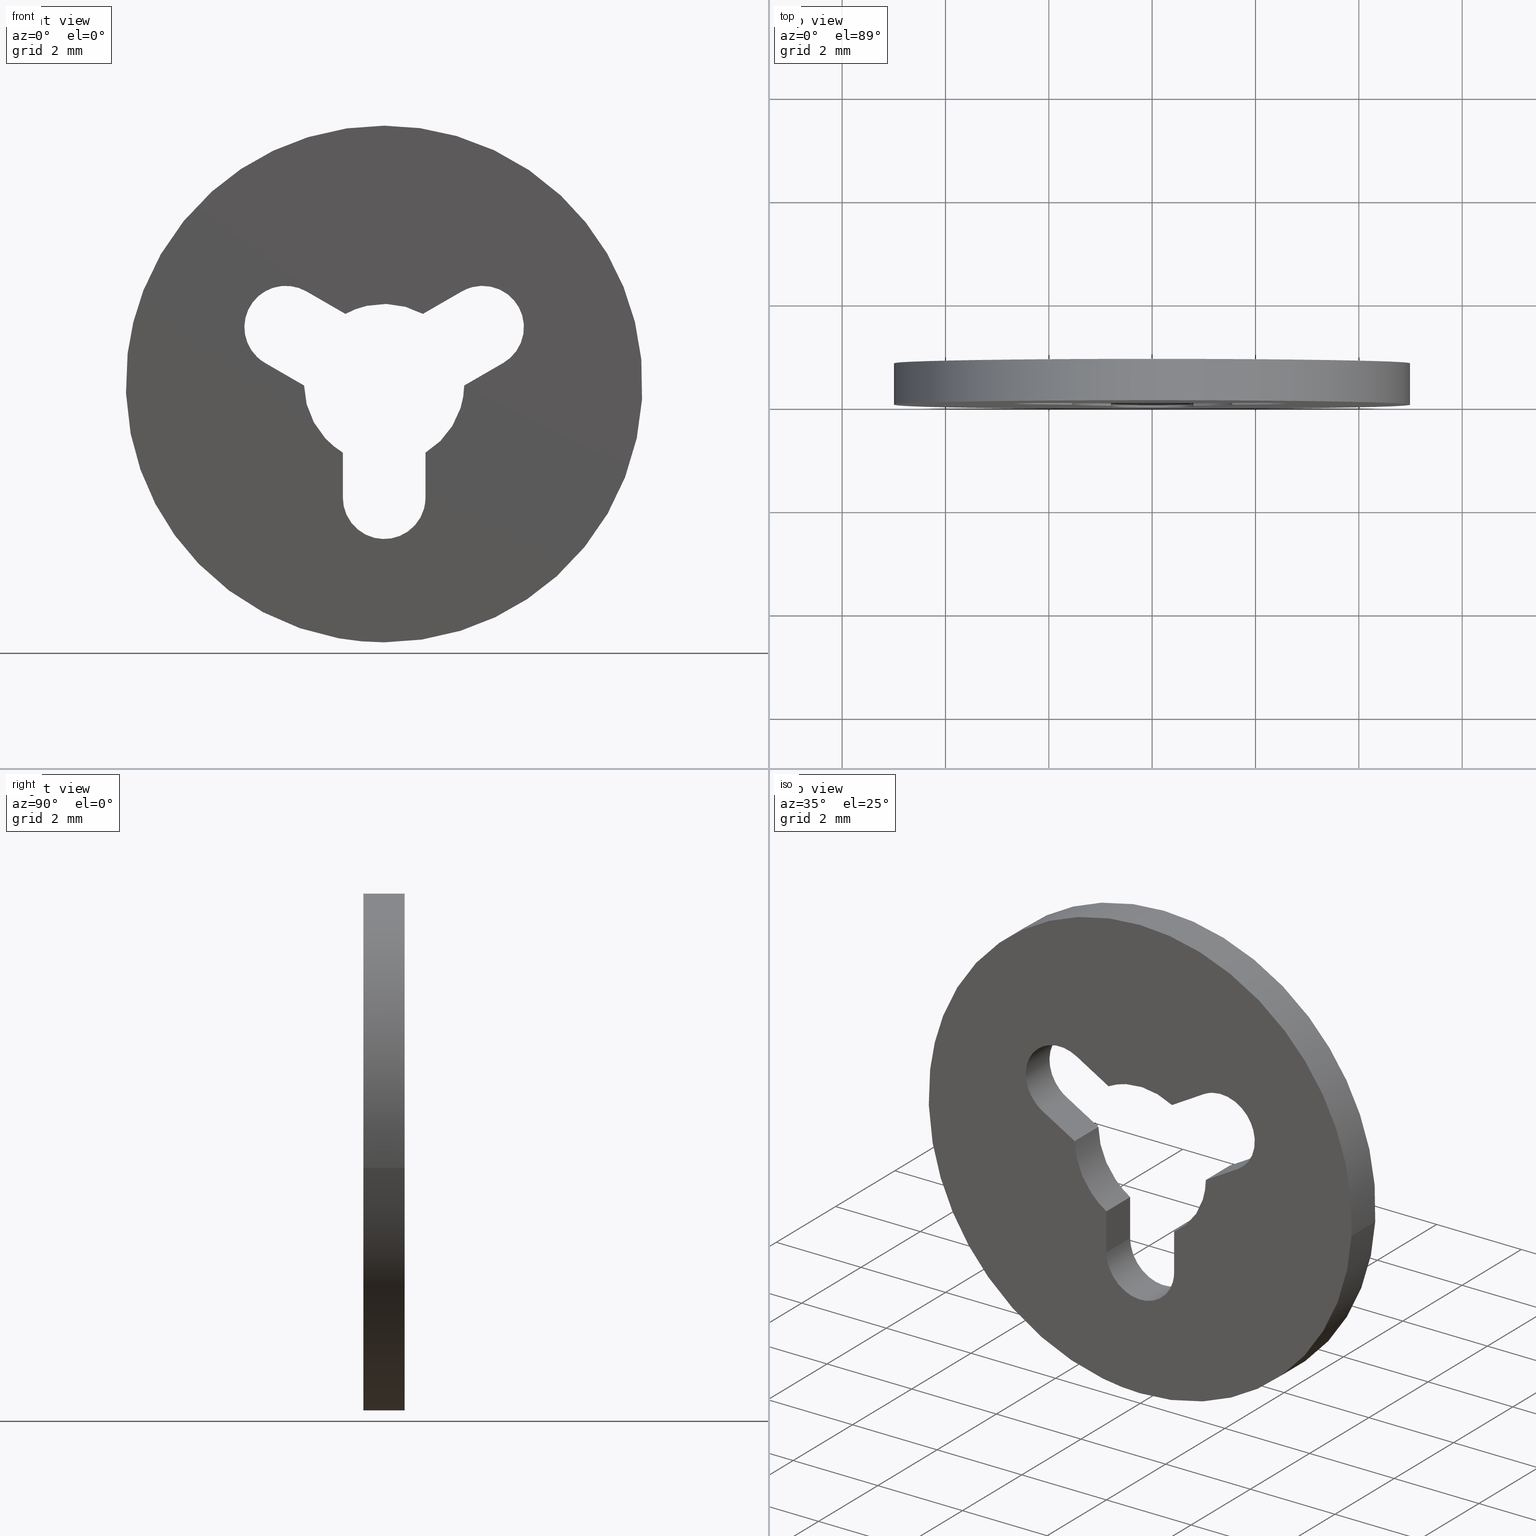
[diagram: canonical four-view strip — front | top / right | iso, engineering-drawing reading convention]
A machine part, canonical four-view strip (front | top / right | iso — engineering-drawing reading convention). The complete STEP part file that produces these views, byte-faithful:
ISO-10303-21;
HEADER;
/****************************************************************
 * Generated by software with PDE/Lib inside                    *
 * PDElib Version 4.4.1-0003, patched  Thursday August 19 11:58 *
 * International Technegroup Inc. (www.iti-oh.com)              *
 ****************************************************************/
FILE_DESCRIPTION((''),'2;1');
FILE_NAME('','2005-07-15T17:44:03',(''),(''),'','CADfix','');
FILE_SCHEMA(('AUTOMOTIVE_DESIGN'));
ENDSEC;
DATA;
#5=APPLICATION_CONTEXT('automotive design');
#6=APPLICATION_PROTOCOL_DEFINITION('Draft International Standard','automotive_design',1998,#5);
#7=PRODUCT_CONTEXT('None',#5,'mechanical');
#8=PRODUCT('washer','','None',(#7));
#9=PRODUCT_RELATED_PRODUCT_CATEGORY('part','description',(#8));
#10=PRODUCT_DEFINITION_FORMATION('None','None',#8);
#11=PRODUCT_DEFINITION_CONTEXT('part definition',#5,'design');
#12=PRODUCT_DEFINITION('None','None',#10,#11);
#18=(NAMED_UNIT(*)PLANE_ANGLE_UNIT()SI_UNIT($,.RADIAN.));
#19=DIMENSIONAL_EXPONENTS(0.0,0.0,0.0,0.0,0.0,0.0,0.0);
#20=PLANE_ANGLE_MEASURE_WITH_UNIT(PLANE_ANGLE_MEASURE(0.017453292500000),#18);
#24=(CONVERSION_BASED_UNIT('DEGREE',#20)NAMED_UNIT(#19)PLANE_ANGLE_UNIT());
#28=(NAMED_UNIT(*)SI_UNIT($,.STERADIAN.)SOLID_ANGLE_UNIT());
#32=(LENGTH_UNIT()NAMED_UNIT(*)SI_UNIT(.MILLI.,.METRE.));
#34=UNCERTAINTY_MEASURE_WITH_UNIT(LENGTH_MEASURE(0.001000000000000),#32,'DISTANCE_ACCURACY_VALUE','');
#36=(GEOMETRIC_REPRESENTATION_CONTEXT(3)GLOBAL_UNCERTAINTY_ASSIGNED_CONTEXT((#34))GLOBAL_UNIT_ASSIGNED_CONTEXT((#24,#28,#32))REPRESENTATION_CONTEXT('None','None'));
#37=AXIS2_PLACEMENT_3D('',#38,#39,#40);
#38=CARTESIAN_POINT('',(0.0,0.0,0.0));
#39=DIRECTION('',(0.0,0.0,1.0));
#40=DIRECTION('',(1.0,0.0,0.0));
#41=ADVANCED_BREP_SHAPE_REPRESENTATION('',(#37,#797),#36);
#42=PRODUCT_DEFINITION_SHAPE('','',#12);
#43=SHAPE_DEFINITION_REPRESENTATION(#42,#41);
#44=CARTESIAN_POINT('',(-4.965047631818332,0.820000000000024,0.590171173283792));
#45=CARTESIAN_POINT('',(-4.981938077243028,0.820000000000024,0.448073643189888));
#46=CARTESIAN_POINT('',(-4.990673992109334,0.820000000000024,0.305242697674285));
#47=CARTESIAN_POINT('',(-5.295916689783620,0.820000000000024,-4.685431294435048));
#48=CARTESIAN_POINT('',(-0.305242697674285,0.820000000000024,-4.990673992109334));
#49=CARTESIAN_POINT('',(4.685431294435048,0.820000000000024,-5.295916689783620));
#50=CARTESIAN_POINT('',(4.990673992109334,0.820000000000024,-0.305242697674285));
#51=CARTESIAN_POINT('',(-4.965047631818332,-0.020500000000001,0.590171173283792));
#52=CARTESIAN_POINT('',(-4.981938077243028,-0.020500000000001,0.448073643189888));
#53=CARTESIAN_POINT('',(-4.990673992109334,-0.020500000000001,0.305242697674285));
#54=CARTESIAN_POINT('',(-5.295916689783620,-0.020500000000001,-4.685431294435048));
#55=CARTESIAN_POINT('',(-0.305242697674285,-0.020500000000001,-4.990673992109334));
#56=CARTESIAN_POINT('',(4.685431294435048,-0.020500000000001,-5.295916689783620));
#57=CARTESIAN_POINT('',(4.990673992109334,-0.020500000000001,-0.305242697674285));
#65=(BOUNDED_SURFACE()B_SPLINE_SURFACE(2,1,((#44,#51),(#45,#52),(#46,#53),(#47,#54),(#48,#55),(#49,#56),(#50,#57)),.UNSPECIFIED.,.F.,.F.,.U.)B_SPLINE_SURFACE_WITH_KNOTS((3,2,2,3),(2,2),(0.0,0.331370849898476,8.615642097360375,16.899913344822270),(0.0,1.0),.UNSPECIFIED.)GEOMETRIC_REPRESENTATION_ITEM()RATIONAL_B_SPLINE_SURFACE(((0.977505800795127,0.977505800795127),(0.988284271247462,0.988284271247462),(1.0,1.0),(0.707106781186548,0.707106781186548),(1.0,1.0),(0.707106781186548,0.707106781186548),(1.0,1.0)))REPRESENTATION_ITEM('')SURFACE());
#66=CARTESIAN_POINT('',(-4.965048007634929,3.045997E-014,0.590168011561354));
#67=VERTEX_POINT('',#66);
#68=CARTESIAN_POINT('',(0.0,0.0,-5.0));
#69=VERTEX_POINT('',#68);
#70=CARTESIAN_POINT('',(-4.965048007634929,3.045997E-014,0.590168011561354));
#71=CARTESIAN_POINT('',(-5.000000000000001,0.0,0.296119000685819));
#72=CARTESIAN_POINT('',(-5.0,0.0,0.0));
#73=CARTESIAN_POINT('',(-5.000000000000001,0.0,-5.000000000000001));
#74=CARTESIAN_POINT('',(0.0,0.0,-5.0));
#82=(BOUNDED_CURVE()B_SPLINE_CURVE(2,(#70,#71,#72,#73,#74),.UNSPECIFIED.,.F.,.U.)B_SPLINE_CURVE_WITH_KNOTS((3,2,3),(0.229562581136241,0.250000000000000,0.500000000000000),.UNSPECIFIED.)CURVE()GEOMETRIC_REPRESENTATION_ITEM()RATIONAL_B_SPLINE_CURVE((0.956026965128767,0.976056074419019,1.0,0.707106781186548,1.0))REPRESENTATION_ITEM(''));
#83=EDGE_CURVE('',#67,#69,#82,.T.);
#84=ORIENTED_EDGE('',*,*,#83,.F.);
#85=CARTESIAN_POINT('',(-4.965048002999415,0.800000000000023,0.590168050559857));
#86=VERTEX_POINT('',#85);
#87=CARTESIAN_POINT('',(-4.965048002999415,0.800000000000023,0.590168050559857));
#88=CARTESIAN_POINT('',(-4.965048007634929,3.045997E-014,0.590168011561354));
#89=QUASI_UNIFORM_CURVE('',1,(#87,#88),.UNSPECIFIED.,.F.,.U.);
#90=EDGE_CURVE('',#86,#67,#89,.T.);
#91=ORIENTED_EDGE('',*,*,#90,.F.);
#92=CARTESIAN_POINT('',(0.0,0.800000000000023,-5.0));
#93=VERTEX_POINT('',#92);
#94=CARTESIAN_POINT('',(-4.965048002999415,0.800000000000023,0.590168050559856));
#95=CARTESIAN_POINT('',(-5.0,0.800000000000023,0.296119020391210));
#96=CARTESIAN_POINT('',(-5.0,0.800000000000023,0.0));
#97=CARTESIAN_POINT('',(-5.000000000000001,0.800000000000023,-5.000000000000001));
#98=CARTESIAN_POINT('',(0.0,0.800000000000023,-5.0));
#106=(BOUNDED_CURVE()B_SPLINE_CURVE(2,(#94,#95,#96,#97,#98),.UNSPECIFIED.,.F.,.U.)B_SPLINE_CURVE_WITH_KNOTS((3,2,3),(0.229562579808786,0.250000000000000,0.500000000000000),.UNSPECIFIED.)CURVE()GEOMETRIC_REPRESENTATION_ITEM()RATIONAL_B_SPLINE_CURVE((0.956026962526900,0.976056072863809,1.0,0.707106781186548,1.0))REPRESENTATION_ITEM(''));
#107=EDGE_CURVE('',#86,#93,#106,.T.);
#108=ORIENTED_EDGE('',*,*,#107,.T.);
#109=CARTESIAN_POINT('',(4.990674099992546,0.800000000000023,-0.305240933789139));
#110=VERTEX_POINT('',#109);
#111=CARTESIAN_POINT('',(0.0,0.800000000000023,-5.0));
#112=CARTESIAN_POINT('',(4.703532000033385,0.800000000000023,-5.000000000000001));
#113=CARTESIAN_POINT('',(4.990674099992546,0.800000000000023,-0.305240933789139));
#121=(BOUNDED_CURVE()B_SPLINE_CURVE(2,(#111,#112,#113),.UNSPECIFIED.,.F.,.U.)B_SPLINE_CURVE_WITH_KNOTS((3,3),(0.500000000000000,0.739333023226263),.UNSPECIFIED.)CURVE()GEOMETRIC_REPRESENTATION_ITEM()RATIONAL_B_SPLINE_CURVE((1.0,0.719603921835620,0.976072172374189))REPRESENTATION_ITEM(''));
#122=EDGE_CURVE('',#93,#110,#121,.T.);
#123=ORIENTED_EDGE('',*,*,#122,.T.);
#124=CARTESIAN_POINT('',(4.990674101339240,2.014708E-014,-0.305240911770624));
#125=VERTEX_POINT('',#124);
#126=CARTESIAN_POINT('',(4.990674099992546,0.800000000000023,-0.305240933789139));
#127=CARTESIAN_POINT('',(4.990674101339240,2.014708E-014,-0.305240911770624));
#128=QUASI_UNIFORM_CURVE('',1,(#126,#127),.UNSPECIFIED.,.F.,.U.);
#129=EDGE_CURVE('',#110,#125,#128,.T.);
#130=ORIENTED_EDGE('',*,*,#129,.T.);
#131=CARTESIAN_POINT('',(0.0,0.0,-5.0));
#132=CARTESIAN_POINT('',(4.703532020823824,0.0,-4.999999999999999));
#133=CARTESIAN_POINT('',(4.990674101339240,2.014708E-014,-0.305240911770624));
#141=(BOUNDED_CURVE()B_SPLINE_CURVE(2,(#131,#132,#133),.UNSPECIFIED.,.F.,.U.)B_SPLINE_CURVE_WITH_KNOTS((3,3),(0.500000000000000,0.739333023987528),.UNSPECIFIED.)CURVE()GEOMETRIC_REPRESENTATION_ITEM()RATIONAL_B_SPLINE_CURVE((1.0,0.719603920943743,0.976072174005725))REPRESENTATION_ITEM(''));
#142=EDGE_CURVE('',#69,#125,#141,.T.);
#143=ORIENTED_EDGE('',*,*,#142,.F.);
#144=EDGE_LOOP('',(#84,#91,#108,#123,#130,#143));
#145=FACE_OUTER_BOUND('',#144,.T.);
#146=ADVANCED_FACE('',(#145),#65,.T.);
#147=CARTESIAN_POINT('',(4.990673992109334,0.820000000000024,-0.305242697674285));
#148=CARTESIAN_POINT('',(5.295916689783620,0.820000000000024,4.685431294435048));
#149=CARTESIAN_POINT('',(0.305242697674285,0.820000000000024,4.990673992109334));
#150=CARTESIAN_POINT('',(-4.407717454197504,0.820000000000024,5.278930983662638));
#151=CARTESIAN_POINT('',(-4.965047631818332,0.820000000000024,0.590171173283792));
#152=CARTESIAN_POINT('',(4.990673992109334,-0.020500000000001,-0.305242697674285));
#153=CARTESIAN_POINT('',(5.295916689783620,-0.020500000000001,4.685431294435048));
#154=CARTESIAN_POINT('',(0.305242697674285,-0.020500000000001,4.990673992109334));
#155=CARTESIAN_POINT('',(-4.407717454197504,-0.020500000000001,5.278930983662638));
#156=CARTESIAN_POINT('',(-4.965047631818332,-0.020500000000001,0.590171173283792));
#164=(BOUNDED_SURFACE()B_SPLINE_SURFACE(2,1,((#147,#152),(#148,#153),(#149,#154),(#150,#155),(#151,#156)),.UNSPECIFIED.,.F.,.F.,.U.)B_SPLINE_SURFACE_WITH_KNOTS((3,2,3),(2,2),(0.0,8.284271247461899,16.237171645025320),(0.0,1.0),.UNSPECIFIED.)GEOMETRIC_REPRESENTATION_ITEM()RATIONAL_B_SPLINE_SURFACE(((1.0,1.0),(0.707106781186548,0.707106781186548),(1.0,1.0),(0.718822509939086,0.718822509939086),(0.977505800795127,0.977505800795127)))REPRESENTATION_ITEM('')SURFACE());
#165=CARTESIAN_POINT('',(0.0,0.0,5.0));
#166=VERTEX_POINT('',#165);
#167=CARTESIAN_POINT('',(0.0,0.0,5.0));
#168=CARTESIAN_POINT('',(-4.440875477595059,0.0,5.000000000000001));
#169=CARTESIAN_POINT('',(-4.965048007634929,3.045997E-014,0.590168011561354));
#177=(BOUNDED_CURVE()B_SPLINE_CURVE(2,(#167,#168,#169),.UNSPECIFIED.,.F.,.U.)B_SPLINE_CURVE_WITH_KNOTS((3,3),(0.0,0.229562581136241),.UNSPECIFIED.)CURVE()GEOMETRIC_REPRESENTATION_ITEM()RATIONAL_B_SPLINE_CURVE((1.0,0.731050706767529,0.956026965128767))REPRESENTATION_ITEM(''));
#178=EDGE_CURVE('',#166,#67,#177,.T.);
#179=ORIENTED_EDGE('',*,*,#178,.F.);
#180=CARTESIAN_POINT('',(4.990674101339240,2.014708E-014,-0.305240911770624));
#181=CARTESIAN_POINT('',(5.000000000000001,0.0,-0.152762921037389));
#182=CARTESIAN_POINT('',(5.0,0.0,0.0));
#183=CARTESIAN_POINT('',(5.000000000000001,0.0,5.000000000000001));
#184=CARTESIAN_POINT('',(0.0,0.0,5.0));
#192=(BOUNDED_CURVE()B_SPLINE_CURVE(2,(#180,#181,#182,#183,#184),.UNSPECIFIED.,.F.,.U.)B_SPLINE_CURVE_WITH_KNOTS((3,2,3),(0.739333023987528,0.750000000000000,1.0),.UNSPECIFIED.)CURVE()GEOMETRIC_REPRESENTATION_ITEM()RATIONAL_B_SPLINE_CURVE((0.976072174005725,0.987502860242804,1.0,0.707106781186548,1.0))REPRESENTATION_ITEM(''));
#193=EDGE_CURVE('',#125,#166,#192,.T.);
#194=ORIENTED_EDGE('',*,*,#193,.F.);
#195=ORIENTED_EDGE('',*,*,#129,.F.);
#196=CARTESIAN_POINT('',(0.0,0.800000000000023,5.0));
#197=VERTEX_POINT('',#196);
#198=CARTESIAN_POINT('',(4.990674099992546,0.800000000000023,-0.305240933789139));
#199=CARTESIAN_POINT('',(4.999999999999999,0.800000000000023,-0.152762932077514));
#200=CARTESIAN_POINT('',(5.0,0.800000000000023,0.0));
#201=CARTESIAN_POINT('',(5.000000000000001,0.800000000000023,5.000000000000001));
#202=CARTESIAN_POINT('',(0.0,0.800000000000023,5.0));
#210=(BOUNDED_CURVE()B_SPLINE_CURVE(2,(#198,#199,#200,#201,#202),.UNSPECIFIED.,.F.,.U.)B_SPLINE_CURVE_WITH_KNOTS((3,2,3),(0.739333023226263,0.750000000000000,1.0),.UNSPECIFIED.)CURVE()GEOMETRIC_REPRESENTATION_ITEM()RATIONAL_B_SPLINE_CURVE((0.976072172374189,0.987502859350927,1.0,0.707106781186548,1.0))REPRESENTATION_ITEM(''));
#211=EDGE_CURVE('',#110,#197,#210,.T.);
#212=ORIENTED_EDGE('',*,*,#211,.T.);
#213=CARTESIAN_POINT('',(0.0,0.800000000000023,5.0));
#214=CARTESIAN_POINT('',(-4.440875442468178,0.800000000000023,5.0));
#215=CARTESIAN_POINT('',(-4.965048002999415,0.800000000000023,0.590168050559856));
#223=(BOUNDED_CURVE()B_SPLINE_CURVE(2,(#213,#214,#215),.UNSPECIFIED.,.F.,.U.)B_SPLINE_CURVE_WITH_KNOTS((3,3),(0.0,0.229562579808786),.UNSPECIFIED.)CURVE()GEOMETRIC_REPRESENTATION_ITEM()RATIONAL_B_SPLINE_CURVE((1.0,0.731050708322738,0.956026962526900))REPRESENTATION_ITEM(''));
#224=EDGE_CURVE('',#197,#86,#223,.T.);
#225=ORIENTED_EDGE('',*,*,#224,.T.);
#226=ORIENTED_EDGE('',*,*,#90,.T.);
#227=EDGE_LOOP('',(#179,#194,#195,#212,#225,#226));
#228=FACE_OUTER_BOUND('',#227,.T.);
#229=ADVANCED_FACE('',(#228),#164,.T.);
#230=CARTESIAN_POINT('',(1.482726947457892,0.820000000000024,1.779429406754268));
#231=CARTESIAN_POINT('',(1.482726947457892,-0.020500000000001,1.779429406754268));
#232=CARTESIAN_POINT('',(2.198638559726588,0.820000000000023,2.224649809693317));
#233=CARTESIAN_POINT('',(2.198638559726588,-0.020500000000001,2.224649809693317));
#234=CARTESIAN_POINT('',(2.605780884763344,0.820000000000024,1.486418293881348));
#235=CARTESIAN_POINT('',(2.605780884763344,-0.020500000000001,1.486418293881348));
#236=CARTESIAN_POINT('',(3.012923209800101,0.820000000000023,0.748186778069380));
#237=CARTESIAN_POINT('',(3.012923209800101,-0.020500000000001,0.748186778069380));
#238=CARTESIAN_POINT('',(2.254395231715856,0.820000000000024,0.380238479747726));
#239=CARTESIAN_POINT('',(2.254395231715856,-0.020500000000001,0.380238479747726));
#247=(BOUNDED_SURFACE()B_SPLINE_SURFACE(1,2,((#230,#232,#234,#236,#238),(#231,#233,#235,#237,#239)),.UNSPECIFIED.,.F.,.F.,.U.)B_SPLINE_SURFACE_WITH_KNOTS((2,2),(3,2,3),(0.0,1.0),(0.0,1.0,2.0),.UNSPECIFIED.)GEOMETRIC_REPRESENTATION_ITEM()RATIONAL_B_SPLINE_SURFACE(((1.0,0.688354575693754,1.0,0.688354575693754,1.0),(1.0,0.688354575693754,1.0,0.688354575693754,1.0)))REPRESENTATION_ITEM('')SURFACE());
#248=CARTESIAN_POINT('',(2.309794983558780,0.0,0.409852987198331));
#249=VERTEX_POINT('',#248);
#250=CARTESIAN_POINT('',(1.505200000000000,0.0,1.792900000000000));
#251=VERTEX_POINT('',#250);
#252=CARTESIAN_POINT('',(2.309794983558779,0.0,0.409852987198332));
#253=CARTESIAN_POINT('',(2.997732561522572,0.0,0.813095514915834));
#254=CARTESIAN_POINT('',(2.596752573461200,0.0,1.502354317187515));
#255=CARTESIAN_POINT('',(2.195772585399829,0.0,2.191613119459197));
#256=CARTESIAN_POINT('',(1.505200000000001,0.0,1.792899999999999));
#264=(BOUNDED_CURVE()B_SPLINE_CURVE(2,(#252,#253,#254,#255,#256),.UNSPECIFIED.,.F.,.U.)B_SPLINE_CURVE_WITH_KNOTS((3,2,3),(0.0,0.500000000000000,1.0),.UNSPECIFIED.)CURVE()GEOMETRIC_REPRESENTATION_ITEM()RATIONAL_B_SPLINE_CURVE((1.0,0.708267502221114,1.0,0.708267502221114,1.0))REPRESENTATION_ITEM(''));
#265=EDGE_CURVE('',#249,#251,#264,.T.);
#266=ORIENTED_EDGE('',*,*,#265,.T.);
#267=CARTESIAN_POINT('',(1.505200000000000,0.800000000000023,1.792900000000000));
#268=VERTEX_POINT('',#267);
#269=CARTESIAN_POINT('',(1.505200000000000,0.800000000000023,1.792900000000000));
#270=CARTESIAN_POINT('',(1.505200000000000,0.0,1.792900000000000));
#271=QUASI_UNIFORM_CURVE('',1,(#269,#270),.UNSPECIFIED.,.F.,.U.);
#272=EDGE_CURVE('',#268,#251,#271,.T.);
#273=ORIENTED_EDGE('',*,*,#272,.F.);
#274=CARTESIAN_POINT('',(2.309794983558780,0.800000000000023,0.409852987198331));
#275=VERTEX_POINT('',#274);
#276=CARTESIAN_POINT('',(2.309794983558779,0.800000000000023,0.409852987198332));
#277=CARTESIAN_POINT('',(2.997732561522572,0.800000000000023,0.813095514915834));
#278=CARTESIAN_POINT('',(2.596752573461200,0.800000000000023,1.502354317187515));
#279=CARTESIAN_POINT('',(2.195772585399829,0.800000000000023,2.191613119459197));
#280=CARTESIAN_POINT('',(1.505200000000001,0.800000000000023,1.792899999999999));
#288=(BOUNDED_CURVE()B_SPLINE_CURVE(2,(#276,#277,#278,#279,#280),.UNSPECIFIED.,.F.,.U.)B_SPLINE_CURVE_WITH_KNOTS((3,2,3),(0.0,0.500000000000000,1.0),.UNSPECIFIED.)CURVE()GEOMETRIC_REPRESENTATION_ITEM()RATIONAL_B_SPLINE_CURVE((1.0,0.708267502221114,1.0,0.708267502221114,1.0))REPRESENTATION_ITEM(''));
#289=EDGE_CURVE('',#275,#268,#288,.T.);
#290=ORIENTED_EDGE('',*,*,#289,.F.);
#291=CARTESIAN_POINT('',(2.309794983558780,0.800000000000023,0.409852987198331));
#292=CARTESIAN_POINT('',(2.309794983558780,0.0,0.409852987198331));
#293=QUASI_UNIFORM_CURVE('',1,(#291,#292),.UNSPECIFIED.,.F.,.U.);
#294=EDGE_CURVE('',#275,#249,#293,.T.);
#295=ORIENTED_EDGE('',*,*,#294,.T.);
#296=EDGE_LOOP('',(#266,#273,#290,#295));
#297=FACE_OUTER_BOUND('',#296,.T.);
#298=ADVANCED_FACE('',(#297),#247,.F.);
#299=CARTESIAN_POINT('',(1.542940244300294,-0.039959998449446,1.814689933241280));
#300=CARTESIAN_POINT('',(0.711899408414330,-0.039959998449446,1.334875224288987));
#301=CARTESIAN_POINT('',(1.542940244300294,0.839960019907141,1.814689933241280));
#302=CARTESIAN_POINT('',(0.711899408414330,0.839960019907141,1.334875224288987));
#303=B_SPLINE_SURFACE_WITH_KNOTS('',1,1,((#299,#301),(#300,#302)),.UNSPECIFIED.,.F.,.F.,.U.,(2,2),(2,2),(0.041708327125758,0.958291687775403),(0.041708334948495,0.958291687403247),.UNSPECIFIED.);
#304=CARTESIAN_POINT('',(0.749639666225095,0.0,1.356665165330756));
#305=VERTEX_POINT('',#304);
#306=CARTESIAN_POINT('',(0.749639666225095,0.0,1.356665165330756));
#307=CARTESIAN_POINT('',(1.505200000000000,0.0,1.792900000000000));
#308=QUASI_UNIFORM_CURVE('',1,(#306,#307),.UNSPECIFIED.,.F.,.U.);
#309=EDGE_CURVE('',#305,#251,#308,.T.);
#310=ORIENTED_EDGE('',*,*,#309,.F.);
#311=CARTESIAN_POINT('',(0.749639666225095,0.800000000000023,1.356665165330756));
#312=VERTEX_POINT('',#311);
#313=CARTESIAN_POINT('',(0.749639666225095,0.800000000000023,1.356665165330756));
#314=CARTESIAN_POINT('',(0.749639666225095,0.0,1.356665165330756));
#315=QUASI_UNIFORM_CURVE('',1,(#313,#314),.UNSPECIFIED.,.F.,.U.);
#316=EDGE_CURVE('',#312,#305,#315,.T.);
#317=ORIENTED_EDGE('',*,*,#316,.F.);
#318=CARTESIAN_POINT('',(0.749639666225095,0.800000000000023,1.356665165330756));
#319=CARTESIAN_POINT('',(1.505200000000000,0.800000000000023,1.792900000000000));
#320=QUASI_UNIFORM_CURVE('',1,(#318,#319),.UNSPECIFIED.,.F.,.U.);
#321=EDGE_CURVE('',#312,#268,#320,.T.);
#322=ORIENTED_EDGE('',*,*,#321,.T.);
#323=ORIENTED_EDGE('',*,*,#272,.T.);
#324=EDGE_LOOP('',(#310,#317,#322,#323));
#325=FACE_OUTER_BOUND('',#324,.T.);
#326=ADVANCED_FACE('',(#325),#303,.T.);
#327=CARTESIAN_POINT('',(-0.788471378397910,0.820000000000024,1.334471013340978));
#328=CARTESIAN_POINT('',(-0.788471378397910,-0.020500000000001,1.334471013340978));
#329=CARTESIAN_POINT('',(0.017631888896979,0.820000000000024,1.810756633591209));
#330=CARTESIAN_POINT('',(0.017631888896979,-0.020500000000001,1.810756633591209));
#331=CARTESIAN_POINT('',(0.814307712209180,0.820000000000024,1.318864265129907));
#332=CARTESIAN_POINT('',(0.814307712209180,-0.020500000000001,1.318864265129907));
#340=(BOUNDED_SURFACE()B_SPLINE_SURFACE(1,2,((#327,#329,#331),(#328,#330,#332)),.UNSPECIFIED.,.F.,.F.,.U.)B_SPLINE_SURFACE_WITH_KNOTS((2,2),(3,3),(0.0,1.0),(0.0,0.971617509772908),.UNSPECIFIED.)GEOMETRIC_REPRESENTATION_ITEM()RATIONAL_B_SPLINE_SURFACE(((1.0,0.852360869582254,0.991619267647564),(1.0,0.852360869582254,0.991619267647564)))REPRESENTATION_ITEM('')SURFACE());
#341=CARTESIAN_POINT('',(-0.749690762769801,0.0,1.356636930139244));
#342=VERTEX_POINT('',#341);
#343=CARTESIAN_POINT('',(0.749639666225096,0.0,1.356665165330756));
#344=CARTESIAN_POINT('',(-0.000033349446036,0.0,1.770904908199554));
#345=CARTESIAN_POINT('',(-0.749690762769801,0.0,1.356636930139245));
#353=(BOUNDED_CURVE()B_SPLINE_CURVE(2,(#343,#344,#345),.UNSPECIFIED.,.F.,.U.)CURVE()GEOMETRIC_REPRESENTATION_ITEM()QUASI_UNIFORM_CURVE()RATIONAL_B_SPLINE_CURVE((1.0,0.875258740629394,1.0))REPRESENTATION_ITEM(''));
#354=EDGE_CURVE('',#305,#342,#353,.T.);
#355=ORIENTED_EDGE('',*,*,#354,.T.);
#356=CARTESIAN_POINT('',(-0.749690762769801,0.800000000000023,1.356636930139244));
#357=VERTEX_POINT('',#356);
#358=CARTESIAN_POINT('',(-0.749690762769801,0.800000000000023,1.356636930139244));
#359=CARTESIAN_POINT('',(-0.749690762769801,0.0,1.356636930139244));
#360=QUASI_UNIFORM_CURVE('',1,(#358,#359),.UNSPECIFIED.,.F.,.U.);
#361=EDGE_CURVE('',#357,#342,#360,.T.);
#362=ORIENTED_EDGE('',*,*,#361,.F.);
#363=CARTESIAN_POINT('',(0.749639666225096,0.800000000000023,1.356665165330756));
#364=CARTESIAN_POINT('',(-0.000033349446036,0.800000000000023,1.770904908199554));
#365=CARTESIAN_POINT('',(-0.749690762769801,0.800000000000023,1.356636930139245));
#373=(BOUNDED_CURVE()B_SPLINE_CURVE(2,(#363,#364,#365),.UNSPECIFIED.,.F.,.U.)CURVE()GEOMETRIC_REPRESENTATION_ITEM()QUASI_UNIFORM_CURVE()RATIONAL_B_SPLINE_CURVE((1.0,0.875258740629394,1.0))REPRESENTATION_ITEM(''));
#374=EDGE_CURVE('',#312,#357,#373,.T.);
#375=ORIENTED_EDGE('',*,*,#374,.F.);
#376=ORIENTED_EDGE('',*,*,#316,.T.);
#377=EDGE_LOOP('',(#355,#362,#375,#376));
#378=FACE_OUTER_BOUND('',#377,.T.);
#379=ADVANCED_FACE('',(#378),#340,.F.);
#380=CARTESIAN_POINT('',(-0.711948061555323,-0.039959998449446,1.334845578359269));
#381=CARTESIAN_POINT('',(-1.543042701214488,-0.039959998449446,1.814691351779960));
#382=CARTESIAN_POINT('',(-0.711948061555323,0.839960019907141,1.334845578359269));
#383=CARTESIAN_POINT('',(-1.543042701214488,0.839960019907141,1.814691351779960));
#384=B_SPLINE_SURFACE_WITH_KNOTS('',1,1,((#380,#382),(#381,#383)),.UNSPECIFIED.,.F.,.F.,.U.,(2,2),(2,2),(0.041708311480284,0.958291688519716),(0.041708334948495,0.958291687403247),.UNSPECIFIED.);
#385=CARTESIAN_POINT('',(-1.505300000000000,0.0,1.792900000000000));
#386=VERTEX_POINT('',#385);
#387=CARTESIAN_POINT('',(-1.505300000000000,0.0,1.792900000000000));
#388=CARTESIAN_POINT('',(-0.749690762769801,0.0,1.356636930139244));
#389=QUASI_UNIFORM_CURVE('',1,(#387,#388),.UNSPECIFIED.,.F.,.U.);
#390=EDGE_CURVE('',#386,#342,#389,.T.);
#391=ORIENTED_EDGE('',*,*,#390,.F.);
#392=CARTESIAN_POINT('',(-1.505300000000000,0.800000000000023,1.792900000000000));
#393=VERTEX_POINT('',#392);
#394=CARTESIAN_POINT('',(-1.505300000000000,0.800000000000023,1.792900000000000));
#395=CARTESIAN_POINT('',(-1.505300000000000,0.0,1.792900000000000));
#396=QUASI_UNIFORM_CURVE('',1,(#394,#395),.UNSPECIFIED.,.F.,.U.);
#397=EDGE_CURVE('',#393,#386,#396,.T.);
#398=ORIENTED_EDGE('',*,*,#397,.F.);
#399=CARTESIAN_POINT('',(-1.505300000000000,0.800000000000023,1.792900000000000));
#400=CARTESIAN_POINT('',(-0.749690762769801,0.800000000000023,1.356636930139244));
#401=QUASI_UNIFORM_CURVE('',1,(#399,#400),.UNSPECIFIED.,.F.,.U.);
#402=EDGE_CURVE('',#393,#357,#401,.T.);
#403=ORIENTED_EDGE('',*,*,#402,.T.);
#404=ORIENTED_EDGE('',*,*,#361,.T.);
#405=EDGE_LOOP('',(#391,#398,#403,#404));
#406=FACE_OUTER_BOUND('',#405,.T.);
#407=ADVANCED_FACE('',(#406),#384,.T.);
#408=CARTESIAN_POINT('',(-2.274748757730526,0.820000000000024,0.390419309985870));
#409=CARTESIAN_POINT('',(-2.274748757730526,-0.020500000000001,0.390419309985870));
#410=CARTESIAN_POINT('',(-3.029113044070550,0.820000000000024,0.783127801088293));
#411=CARTESIAN_POINT('',(-3.029113044070550,-0.020500000000001,0.783127801088293));
#412=CARTESIAN_POINT('',(-2.591084195507165,0.820000000000024,1.512110766126209));
#413=CARTESIAN_POINT('',(-2.591084195507165,-0.020500000000001,1.512110766126209));
#414=CARTESIAN_POINT('',(-2.153055346943780,0.820000000000024,2.241093731164125));
#415=CARTESIAN_POINT('',(-2.153055346943780,-0.020500000000001,2.241093731164125));
#416=CARTESIAN_POINT('',(-1.452173103561614,0.820000000000024,1.759378549338994));
#417=CARTESIAN_POINT('',(-1.452173103561614,-0.020500000000001,1.759378549338994));
#425=(BOUNDED_SURFACE()B_SPLINE_SURFACE(1,2,((#408,#410,#412,#414,#416),(#409,#411,#413,#415,#417)),.UNSPECIFIED.,.F.,.F.,.U.)B_SPLINE_SURFACE_WITH_KNOTS((2,2),(3,2,3),(0.0,1.0),(0.0,1.0,2.0),.UNSPECIFIED.)GEOMETRIC_REPRESENTATION_ITEM()RATIONAL_B_SPLINE_SURFACE(((1.0,0.685182990326359,1.0,0.685182990326359,1.0),(1.0,0.685182990326359,1.0,0.685182990326359,1.0)))REPRESENTATION_ITEM('')SURFACE());
#426=CARTESIAN_POINT('',(-2.300703745775685,0.0,0.404546279162633));
#427=VERTEX_POINT('',#426);
#428=CARTESIAN_POINT('',(-1.505300000000000,0.0,1.792900000000000));
#429=CARTESIAN_POINT('',(-1.906346013160948,0.0,2.024450325533841));
#430=CARTESIAN_POINT('',(-2.306879795074811,0.0,1.792015071166313));
#431=CARTESIAN_POINT('',(-2.707413576988674,0.0,1.559579816798786));
#432=CARTESIAN_POINT('',(-2.705352236400295,0.0,1.096493206322843));
#433=CARTESIAN_POINT('',(-2.703290895811918,0.0,0.633406595846900));
#434=CARTESIAN_POINT('',(-2.300703745775686,0.0,0.404546279162634));
#442=(BOUNDED_CURVE()B_SPLINE_CURVE(2,(#428,#429,#430,#431,#432,#433,#434),.UNSPECIFIED.,.F.,.U.)B_SPLINE_CURVE_WITH_KNOTS((3,2,2,3),(0.0,0.333333333333333,0.666666666666667,1.0),.UNSPECIFIED.)CURVE()GEOMETRIC_REPRESENTATION_ITEM()RATIONAL_B_SPLINE_CURVE((1.0,0.865466982010348,1.0,0.865466982010348,1.0,0.865466982010348,1.0))REPRESENTATION_ITEM(''));
#443=EDGE_CURVE('',#386,#427,#442,.T.);
#444=ORIENTED_EDGE('',*,*,#443,.T.);
#445=CARTESIAN_POINT('',(-2.300703745775685,0.800000000000023,0.404546279162633));
#446=VERTEX_POINT('',#445);
#447=CARTESIAN_POINT('',(-2.300703745775685,0.800000000000023,0.404546279162633));
#448=CARTESIAN_POINT('',(-2.300703745775685,0.0,0.404546279162633));
#449=QUASI_UNIFORM_CURVE('',1,(#447,#448),.UNSPECIFIED.,.F.,.U.);
#450=EDGE_CURVE('',#446,#427,#449,.T.);
#451=ORIENTED_EDGE('',*,*,#450,.F.);
#452=CARTESIAN_POINT('',(-1.505300000000000,0.800000000000023,1.792900000000000));
#453=CARTESIAN_POINT('',(-1.906346013160948,0.800000000000023,2.024450325533841));
#454=CARTESIAN_POINT('',(-2.306879795074811,0.800000000000023,1.792015071166313));
#455=CARTESIAN_POINT('',(-2.707413576988674,0.800000000000023,1.559579816798786));
#456=CARTESIAN_POINT('',(-2.705352236400295,0.800000000000023,1.096493206322843));
#457=CARTESIAN_POINT('',(-2.703290895811918,0.800000000000023,0.633406595846900));
#458=CARTESIAN_POINT('',(-2.300703745775686,0.800000000000023,0.404546279162634));
#466=(BOUNDED_CURVE()B_SPLINE_CURVE(2,(#452,#453,#454,#455,#456,#457,#458),.UNSPECIFIED.,.F.,.U.)B_SPLINE_CURVE_WITH_KNOTS((3,2,2,3),(0.0,0.333333333333333,0.666666666666667,1.0),.UNSPECIFIED.)CURVE()GEOMETRIC_REPRESENTATION_ITEM()RATIONAL_B_SPLINE_CURVE((1.0,0.865466982010348,1.0,0.865466982010348,1.0,0.865466982010348,1.0))REPRESENTATION_ITEM(''));
#467=EDGE_CURVE('',#393,#446,#466,.T.);
#468=ORIENTED_EDGE('',*,*,#467,.F.);
#469=ORIENTED_EDGE('',*,*,#397,.T.);
#470=EDGE_LOOP('',(#444,#451,#468,#469));
#471=FACE_OUTER_BOUND('',#470,.T.);
#472=ADVANCED_FACE('',(#471),#425,.F.);
#473=CARTESIAN_POINT('',(-2.338215008642938,-0.039959998449446,0.426204006313788));
#474=CARTESIAN_POINT('',(-1.512216643590716,-0.039959998449446,-0.050699351509877));
#475=CARTESIAN_POINT('',(-2.338215008642938,0.839960019907141,0.426204006313788));
#476=CARTESIAN_POINT('',(-1.512216643590716,0.839960019907141,-0.050699351509877));
#477=B_SPLINE_SURFACE_WITH_KNOTS('',1,1,((#473,#475),(#474,#476)),.UNSPECIFIED.,.F.,.F.,.U.,(2,2),(2,2),(0.041708311480284,0.958291688519716),(0.041708334948495,0.958291687403247),.UNSPECIFIED.);
#478=CARTESIAN_POINT('',(-1.549727906457970,0.0,-0.029041624358724));
#479=VERTEX_POINT('',#478);
#480=CARTESIAN_POINT('',(-1.549727906457970,0.0,-0.029041624358724));
#481=CARTESIAN_POINT('',(-2.300703745775685,0.0,0.404546279162633));
#482=QUASI_UNIFORM_CURVE('',1,(#480,#481),.UNSPECIFIED.,.F.,.U.);
#483=EDGE_CURVE('',#479,#427,#482,.T.);
#484=ORIENTED_EDGE('',*,*,#483,.F.);
#485=CARTESIAN_POINT('',(-1.549727906457970,0.800000000000023,-0.029041624358724));
#486=VERTEX_POINT('',#485);
#487=CARTESIAN_POINT('',(-1.549727906457970,0.800000000000023,-0.029041624358724));
#488=CARTESIAN_POINT('',(-1.549727906457970,0.0,-0.029041624358724));
#489=QUASI_UNIFORM_CURVE('',1,(#487,#488),.UNSPECIFIED.,.F.,.U.);
#490=EDGE_CURVE('',#486,#479,#489,.T.);
#491=ORIENTED_EDGE('',*,*,#490,.F.);
#492=CARTESIAN_POINT('',(-1.549727906457970,0.800000000000023,-0.029041624358724));
#493=CARTESIAN_POINT('',(-2.300703745775685,0.800000000000023,0.404546279162633));
#494=QUASI_UNIFORM_CURVE('',1,(#492,#493),.UNSPECIFIED.,.F.,.U.);
#495=EDGE_CURVE('',#486,#446,#494,.T.);
#496=ORIENTED_EDGE('',*,*,#495,.T.);
#497=ORIENTED_EDGE('',*,*,#450,.T.);
#498=EDGE_LOOP('',(#484,#491,#496,#497));
#499=FACE_OUTER_BOUND('',#498,.T.);
#500=ADVANCED_FACE('',(#499),#477,.T.);
#501=CARTESIAN_POINT('',(-0.761523254264132,0.820000000000024,-1.350030493438932));
#502=CARTESIAN_POINT('',(-0.761523254264132,-0.020500000000001,-1.350030493438932));
#503=CARTESIAN_POINT('',(-1.577029176720283,0.820000000000024,-0.890021088496870));
#504=CARTESIAN_POINT('',(-1.577029176720283,-0.020500000000001,-0.890021088496870));
#505=CARTESIAN_POINT('',(-1.549321143899361,0.820000000000024,0.045869304184561));
#506=CARTESIAN_POINT('',(-1.549321143899361,-0.020500000000001,0.045869304184561));
#514=(BOUNDED_SURFACE()B_SPLINE_SURFACE(1,2,((#501,#503,#505),(#502,#504,#506)),.UNSPECIFIED.,.F.,.F.,.U.)B_SPLINE_SURFACE_WITH_KNOTS((2,2),(3,3),(0.0,1.0),(0.0,0.971621332285367),.UNSPECIFIED.)GEOMETRIC_REPRESENTATION_ITEM()RATIONAL_B_SPLINE_SURFACE(((1.0,0.852360288744209,0.991620363385575),(1.0,0.852360288744209,0.991620363385575)))REPRESENTATION_ITEM('')SURFACE());
#515=CARTESIAN_POINT('',(-0.799999999999990,0.0,-1.327591804735182));
#516=VERTEX_POINT('',#515);
#517=CARTESIAN_POINT('',(-1.549727906457971,0.0,-0.029041624358724));
#518=CARTESIAN_POINT('',(-1.533678385811006,0.0,-0.885480979287683));
#519=CARTESIAN_POINT('',(-0.799999999999990,0.0,-1.327591804735181));
#527=(BOUNDED_CURVE()B_SPLINE_CURVE(2,(#517,#518,#519),.UNSPECIFIED.,.F.,.U.)CURVE()GEOMETRIC_REPRESENTATION_ITEM()QUASI_UNIFORM_CURVE()RATIONAL_B_SPLINE_CURVE((1.0,0.875238959213732,1.0))REPRESENTATION_ITEM(''));
#528=EDGE_CURVE('',#479,#516,#527,.T.);
#529=ORIENTED_EDGE('',*,*,#528,.T.);
#530=CARTESIAN_POINT('',(-0.799999999999990,0.800000000000023,-1.327591804735182));
#531=VERTEX_POINT('',#530);
#532=CARTESIAN_POINT('',(-0.799999999999990,0.800000000000023,-1.327591804735182));
#533=CARTESIAN_POINT('',(-0.799999999999990,0.0,-1.327591804735182));
#534=QUASI_UNIFORM_CURVE('',1,(#532,#533),.UNSPECIFIED.,.F.,.U.);
#535=EDGE_CURVE('',#531,#516,#534,.T.);
#536=ORIENTED_EDGE('',*,*,#535,.F.);
#537=CARTESIAN_POINT('',(-1.549727906457971,0.800000000000023,-0.029041624358724));
#538=CARTESIAN_POINT('',(-1.533678385811006,0.800000000000023,-0.885480979287683));
#539=CARTESIAN_POINT('',(-0.799999999999990,0.800000000000023,-1.327591804735181));
#547=(BOUNDED_CURVE()B_SPLINE_CURVE(2,(#537,#538,#539),.UNSPECIFIED.,.F.,.U.)CURVE()GEOMETRIC_REPRESENTATION_ITEM()QUASI_UNIFORM_CURVE()RATIONAL_B_SPLINE_CURVE((1.0,0.875238959213732,1.0))REPRESENTATION_ITEM(''));
#548=EDGE_CURVE('',#486,#531,#547,.T.);
#549=ORIENTED_EDGE('',*,*,#548,.F.);
#550=ORIENTED_EDGE('',*,*,#490,.T.);
#551=EDGE_LOOP('',(#529,#536,#549,#550));
#552=FACE_OUTER_BOUND('',#551,.T.);
#553=ADVANCED_FACE('',(#552),#514,.F.);
#554=CARTESIAN_POINT('',(-0.799999999999990,-0.039959998449446,-1.284014984314425));
#555=CARTESIAN_POINT('',(-0.799999999999990,-0.039959998449446,-2.243576812620820));
#556=CARTESIAN_POINT('',(-0.799999999999990,0.839960019907141,-1.284014984314425));
#557=CARTESIAN_POINT('',(-0.799999999999990,0.839960019907141,-2.243576812620820));
#558=B_SPLINE_SURFACE_WITH_KNOTS('',1,1,((#554,#556),(#555,#557)),.UNSPECIFIED.,.F.,.F.,.U.,(2,2),(2,2),(0.041708303657547,0.958291688891873),(0.041708334948495,0.958291687403247),.UNSPECIFIED.);
#559=CARTESIAN_POINT('',(-0.800000000000000,0.0,-2.200000000000000));
#560=VERTEX_POINT('',#559);
#561=CARTESIAN_POINT('',(-0.800000000000000,0.0,-2.200000000000000));
#562=CARTESIAN_POINT('',(-0.799999999999990,0.0,-1.327591804735182));
#563=QUASI_UNIFORM_CURVE('',1,(#561,#562),.UNSPECIFIED.,.F.,.U.);
#564=EDGE_CURVE('',#560,#516,#563,.T.);
#565=ORIENTED_EDGE('',*,*,#564,.F.);
#566=CARTESIAN_POINT('',(-0.800000000000000,0.800000000000023,-2.200000000000000));
#567=VERTEX_POINT('',#566);
#568=CARTESIAN_POINT('',(-0.800000000000000,0.800000000000023,-2.200000000000000));
#569=CARTESIAN_POINT('',(-0.800000000000000,0.0,-2.200000000000000));
#570=QUASI_UNIFORM_CURVE('',1,(#568,#569),.UNSPECIFIED.,.F.,.U.);
#571=EDGE_CURVE('',#567,#560,#570,.T.);
#572=ORIENTED_EDGE('',*,*,#571,.F.);
#573=CARTESIAN_POINT('',(-0.800000000000000,0.800000000000023,-2.200000000000000));
#574=CARTESIAN_POINT('',(-0.799999999999990,0.800000000000023,-1.327591804735182));
#575=QUASI_UNIFORM_CURVE('',1,(#573,#574),.UNSPECIFIED.,.F.,.U.);
#576=EDGE_CURVE('',#567,#531,#575,.T.);
#577=ORIENTED_EDGE('',*,*,#576,.T.);
#578=ORIENTED_EDGE('',*,*,#535,.T.);
#579=EDGE_LOOP('',(#565,#572,#577,#578));
#580=FACE_OUTER_BOUND('',#579,.T.);
#581=ADVANCED_FACE('',(#580),#558,.T.);
#582=CARTESIAN_POINT('',(0.799725859980446,0.820000000000024,-2.179058441353701));
#583=CARTESIAN_POINT('',(0.799725859980446,-0.020500000000001,-2.179058441353701));
#584=CARTESIAN_POINT('',(0.821793658274322,0.820000000000024,-3.021793658274320));
#585=CARTESIAN_POINT('',(0.821793658274322,-0.020500000000001,-3.021793658274320));
#586=CARTESIAN_POINT('',(-0.020941558646297,0.820000000000024,-2.999725859980446));
#587=CARTESIAN_POINT('',(-0.020941558646297,-0.020500000000001,-2.999725859980446));
#588=CARTESIAN_POINT('',(-0.863676775566916,0.820000000000024,-2.977658061686572));
#589=CARTESIAN_POINT('',(-0.863676775566916,-0.020500000000001,-2.977658061686572));
#590=CARTESIAN_POINT('',(-0.797533866986502,0.820000000000024,-2.137232723417725));
#591=CARTESIAN_POINT('',(-0.797533866986502,-0.020500000000001,-2.137232723417725));
#599=(BOUNDED_SURFACE()B_SPLINE_SURFACE(1,2,((#582,#584,#586,#588,#590),(#583,#585,#587,#589,#591)),.UNSPECIFIED.,.F.,.F.,.U.)B_SPLINE_SURFACE_WITH_KNOTS((2,2),(3,2,3),(0.0,1.0),(0.0,1.0,2.0),.UNSPECIFIED.)GEOMETRIC_REPRESENTATION_ITEM()RATIONAL_B_SPLINE_SURFACE(((1.0,0.688354575693754,1.0,0.688354575693754,1.0),(1.0,0.688354575693754,1.0,0.688354575693754,1.0)))REPRESENTATION_ITEM('')SURFACE());
#600=CARTESIAN_POINT('',(0.800000000000000,0.0,-2.200000000000000));
#601=VERTEX_POINT('',#600);
#602=CARTESIAN_POINT('',(-0.800000000000000,0.0,-2.200000000000000));
#603=CARTESIAN_POINT('',(-0.800000000000000,0.0,-3.0));
#604=CARTESIAN_POINT('',(0.0,0.0,-3.0));
#605=CARTESIAN_POINT('',(0.800000000000000,0.0,-3.0));
#606=CARTESIAN_POINT('',(0.800000000000000,0.0,-2.200000000000000));
#614=(BOUNDED_CURVE()B_SPLINE_CURVE(2,(#602,#603,#604,#605,#606),.UNSPECIFIED.,.F.,.U.)B_SPLINE_CURVE_WITH_KNOTS((3,2,3),(0.0,0.500000000000000,1.0),.UNSPECIFIED.)CURVE()GEOMETRIC_REPRESENTATION_ITEM()RATIONAL_B_SPLINE_CURVE((1.0,0.707106781186548,1.0,0.707106781186548,1.0))REPRESENTATION_ITEM(''));
#615=EDGE_CURVE('',#560,#601,#614,.T.);
#616=ORIENTED_EDGE('',*,*,#615,.T.);
#617=CARTESIAN_POINT('',(0.800000000000000,0.800000000000023,-2.200000000000000));
#618=VERTEX_POINT('',#617);
#619=CARTESIAN_POINT('',(0.800000000000000,0.800000000000023,-2.200000000000000));
#620=CARTESIAN_POINT('',(0.800000000000000,0.0,-2.200000000000000));
#621=QUASI_UNIFORM_CURVE('',1,(#619,#620),.UNSPECIFIED.,.F.,.U.);
#622=EDGE_CURVE('',#618,#601,#621,.T.);
#623=ORIENTED_EDGE('',*,*,#622,.F.);
#624=CARTESIAN_POINT('',(-0.800000000000000,0.800000000000023,-2.200000000000000));
#625=CARTESIAN_POINT('',(-0.800000000000000,0.800000000000023,-3.0));
#626=CARTESIAN_POINT('',(0.0,0.800000000000023,-3.0));
#627=CARTESIAN_POINT('',(0.800000000000000,0.800000000000023,-3.0));
#628=CARTESIAN_POINT('',(0.800000000000000,0.800000000000023,-2.200000000000000));
#636=(BOUNDED_CURVE()B_SPLINE_CURVE(2,(#624,#625,#626,#627,#628),.UNSPECIFIED.,.F.,.U.)B_SPLINE_CURVE_WITH_KNOTS((3,2,3),(0.0,0.500000000000000,1.0),.UNSPECIFIED.)CURVE()GEOMETRIC_REPRESENTATION_ITEM()RATIONAL_B_SPLINE_CURVE((1.0,0.707106781186548,1.0,0.707106781186548,1.0))REPRESENTATION_ITEM(''));
#637=EDGE_CURVE('',#567,#618,#636,.T.);
#638=ORIENTED_EDGE('',*,*,#637,.F.);
#639=ORIENTED_EDGE('',*,*,#571,.T.);
#640=EDGE_LOOP('',(#616,#623,#638,#639));
#641=FACE_OUTER_BOUND('',#640,.T.);
#642=ADVANCED_FACE('',(#641),#599,.F.);
#643=CARTESIAN_POINT('',(0.800000000000000,-0.039959998449446,-2.243576836799845));
#644=CARTESIAN_POINT('',(0.800000000000000,-0.039959998449446,-1.284014991335144));
#645=CARTESIAN_POINT('',(0.800000000000000,0.839960019907141,-2.243576836799845));
#646=CARTESIAN_POINT('',(0.800000000000000,0.839960019907141,-1.284014991335144));
#647=B_SPLINE_SURFACE_WITH_KNOTS('',1,1,((#643,#645),(#644,#646)),.UNSPECIFIED.,.F.,.F.,.U.,(2,2),(2,2),(0.041708288012072,0.958291689636186),(0.041708334948495,0.958291687403247),.UNSPECIFIED.);
#648=CARTESIAN_POINT('',(0.800000000000000,0.0,-1.327591804735178));
#649=VERTEX_POINT('',#648);
#650=CARTESIAN_POINT('',(0.800000000000000,0.0,-1.327591804735178));
#651=CARTESIAN_POINT('',(0.800000000000000,0.0,-2.200000000000000));
#652=QUASI_UNIFORM_CURVE('',1,(#650,#651),.UNSPECIFIED.,.F.,.U.);
#653=EDGE_CURVE('',#649,#601,#652,.T.);
#654=ORIENTED_EDGE('',*,*,#653,.F.);
#655=CARTESIAN_POINT('',(0.800000000000000,0.800000000000023,-1.327591804735178));
#656=VERTEX_POINT('',#655);
#657=CARTESIAN_POINT('',(0.800000000000000,0.800000000000023,-1.327591804735178));
#658=CARTESIAN_POINT('',(0.800000000000000,0.0,-1.327591804735178));
#659=QUASI_UNIFORM_CURVE('',1,(#657,#658),.UNSPECIFIED.,.F.,.U.);
#660=EDGE_CURVE('',#656,#649,#659,.T.);
#661=ORIENTED_EDGE('',*,*,#660,.F.);
#662=CARTESIAN_POINT('',(0.800000000000000,0.800000000000023,-1.327591804735178));
#663=CARTESIAN_POINT('',(0.800000000000000,0.800000000000023,-2.200000000000000));
#664=QUASI_UNIFORM_CURVE('',1,(#662,#663),.UNSPECIFIED.,.F.,.U.);
#665=EDGE_CURVE('',#656,#618,#664,.T.);
#666=ORIENTED_EDGE('',*,*,#665,.T.);
#667=ORIENTED_EDGE('',*,*,#622,.T.);
#668=EDGE_LOOP('',(#654,#661,#666,#667));
#669=FACE_OUTER_BOUND('',#668,.T.);
#670=ADVANCED_FACE('',(#669),#647,.T.);
#671=CARTESIAN_POINT('',(1.549922502491582,0.820000000000024,0.015499557097882));
#672=CARTESIAN_POINT('',(1.549922502491582,-0.020500000000001,0.015499557097882));
#673=CARTESIAN_POINT('',(1.559285258815637,0.820000000000024,-0.920756015906974));
#674=CARTESIAN_POINT('',(1.559285258815637,-0.020500000000001,-0.920756015906974));
#675=CARTESIAN_POINT('',(0.734918961543541,0.820000000000024,-1.364695614400429));
#676=CARTESIAN_POINT('',(0.734918961543541,-0.020500000000001,-1.364695614400429));
#684=(BOUNDED_SURFACE()B_SPLINE_SURFACE(1,2,((#671,#673,#675),(#672,#674,#676)),.UNSPECIFIED.,.F.,.F.,.U.)B_SPLINE_SURFACE_WITH_KNOTS((2,2),(3,3),(0.0,1.0),(0.0,0.971623031306267),.UNSPECIFIED.)GEOMETRIC_REPRESENTATION_ITEM()RATIONAL_B_SPLINE_SURFACE(((1.0,0.852360030574748,0.991620850419352),(1.0,0.852360030574748,0.991620850419352)))REPRESENTATION_ITEM('')SURFACE());
#685=CARTESIAN_POINT('',(1.549728999154675,0.0,-0.028983256874563));
#686=VERTEX_POINT('',#685);
#687=CARTESIAN_POINT('',(0.799999999999998,0.0,-1.327591804735176));
#688=CARTESIAN_POINT('',(1.533711022130222,0.0,-0.885461312809412));
#689=CARTESIAN_POINT('',(1.549728999154673,0.0,-0.028983256874563));
#697=(BOUNDED_CURVE()B_SPLINE_CURVE(2,(#687,#688,#689),.UNSPECIFIED.,.F.,.U.)CURVE()GEOMETRIC_REPRESENTATION_ITEM()QUASI_UNIFORM_CURVE()RATIONAL_B_SPLINE_CURVE((1.0,0.875229850426156,1.0))REPRESENTATION_ITEM(''));
#698=EDGE_CURVE('',#649,#686,#697,.T.);
#699=ORIENTED_EDGE('',*,*,#698,.T.);
#700=CARTESIAN_POINT('',(1.549728999154675,0.800000000000023,-0.028983256874563));
#701=VERTEX_POINT('',#700);
#702=CARTESIAN_POINT('',(1.549728999154675,0.800000000000023,-0.028983256874563));
#703=CARTESIAN_POINT('',(1.549728999154675,0.0,-0.028983256874563));
#704=QUASI_UNIFORM_CURVE('',1,(#702,#703),.UNSPECIFIED.,.F.,.U.);
#705=EDGE_CURVE('',#701,#686,#704,.T.);
#706=ORIENTED_EDGE('',*,*,#705,.F.);
#707=CARTESIAN_POINT('',(0.799999999999998,0.800000000000023,-1.327591804735176));
#708=CARTESIAN_POINT('',(1.533711022130222,0.800000000000023,-0.885461312809412));
#709=CARTESIAN_POINT('',(1.549728999154673,0.800000000000023,-0.028983256874563));
#717=(BOUNDED_CURVE()B_SPLINE_CURVE(2,(#707,#708,#709),.UNSPECIFIED.,.F.,.U.)CURVE()GEOMETRIC_REPRESENTATION_ITEM()QUASI_UNIFORM_CURVE()RATIONAL_B_SPLINE_CURVE((1.0,0.875229850426156,1.0))REPRESENTATION_ITEM(''));
#718=EDGE_CURVE('',#656,#701,#717,.T.);
#719=ORIENTED_EDGE('',*,*,#718,.F.);
#720=ORIENTED_EDGE('',*,*,#660,.T.);
#721=EDGE_LOOP('',(#699,#706,#719,#720));
#722=FACE_OUTER_BOUND('',#721,.T.);
#723=ADVANCED_FACE('',(#722),#684,.F.);
#724=CARTESIAN_POINT('',(1.511763700287379,-0.039959998449446,-0.050903128967103));
#725=CARTESIAN_POINT('',(2.347760241652959,-0.039959998449446,0.431772835749861));
#726=CARTESIAN_POINT('',(1.511763700287379,0.839960019907141,-0.050903128967103));
#727=CARTESIAN_POINT('',(2.347760241652959,0.839960019907141,0.431772835749861));
#728=B_SPLINE_SURFACE_WITH_KNOTS('',1,1,((#724,#726),(#725,#727)),.UNSPECIFIED.,.F.,.F.,.U.,(2,2),(2,2),(0.041708330103010,0.958291625193507),(0.041708334948495,0.958291687403247),.UNSPECIFIED.);
#729=CARTESIAN_POINT('',(2.309794983558780,0.0,0.409852987198331));
#730=CARTESIAN_POINT('',(1.549728999154675,0.0,-0.028983256874563));
#731=QUASI_UNIFORM_CURVE('',1,(#729,#730),.UNSPECIFIED.,.F.,.U.);
#732=EDGE_CURVE('',#249,#686,#731,.T.);
#733=ORIENTED_EDGE('',*,*,#732,.F.);
#734=ORIENTED_EDGE('',*,*,#294,.F.);
#735=CARTESIAN_POINT('',(2.309794983558780,0.800000000000023,0.409852987198331));
#736=CARTESIAN_POINT('',(1.549728999154675,0.800000000000023,-0.028983256874563));
#737=QUASI_UNIFORM_CURVE('',1,(#735,#736),.UNSPECIFIED.,.F.,.U.);
#738=EDGE_CURVE('',#275,#701,#737,.T.);
#739=ORIENTED_EDGE('',*,*,#738,.T.);
#740=ORIENTED_EDGE('',*,*,#705,.T.);
#741=EDGE_LOOP('',(#733,#734,#739,#740));
#742=FACE_OUTER_BOUND('',#741,.T.);
#743=ADVANCED_FACE('',(#742),#728,.T.);
#744=CARTESIAN_POINT('',(-5.499409322677550,0.0,5.499499980618060));
#745=CARTESIAN_POINT('',(5.499378298459945,0.0,5.499499980618060));
#746=CARTESIAN_POINT('',(-5.499409322677550,0.0,-5.499500248838961));
#747=CARTESIAN_POINT('',(5.499378298459945,0.0,-5.499500248838961));
#748=B_SPLINE_SURFACE_WITH_KNOTS('',1,1,((#744,#746),(#745,#747)),.UNSPECIFIED.,.F.,.F.,.U.,(2,2),(2,2),(0.0,10.998787621137501),(0.0,10.999000229457019),.UNSPECIFIED.);
#749=ORIENTED_EDGE('',*,*,#178,.T.);
#750=ORIENTED_EDGE('',*,*,#83,.T.);
#751=ORIENTED_EDGE('',*,*,#142,.T.);
#752=ORIENTED_EDGE('',*,*,#193,.T.);
#753=EDGE_LOOP('',(#749,#750,#751,#752));
#754=FACE_OUTER_BOUND('',#753,.T.);
#755=ORIENTED_EDGE('',*,*,#265,.F.);
#756=ORIENTED_EDGE('',*,*,#732,.T.);
#757=ORIENTED_EDGE('',*,*,#698,.F.);
#758=ORIENTED_EDGE('',*,*,#653,.T.);
#759=ORIENTED_EDGE('',*,*,#615,.F.);
#760=ORIENTED_EDGE('',*,*,#564,.T.);
#761=ORIENTED_EDGE('',*,*,#528,.F.);
#762=ORIENTED_EDGE('',*,*,#483,.T.);
#763=ORIENTED_EDGE('',*,*,#443,.F.);
#764=ORIENTED_EDGE('',*,*,#390,.T.);
#765=ORIENTED_EDGE('',*,*,#354,.F.);
#766=ORIENTED_EDGE('',*,*,#309,.T.);
#767=EDGE_LOOP('',(#755,#756,#757,#758,#759,#760,#761,#762,#763,#764,#765,#766));
#768=FACE_BOUND('',#767,.T.);
#769=ADVANCED_FACE('',(#754,#768),#748,.F.);
#770=CARTESIAN_POINT('',(-5.499409322677554,0.800000000000000,5.499499980618060));
#771=CARTESIAN_POINT('',(5.499378298459947,0.800000000000000,5.499499980618060));
#772=CARTESIAN_POINT('',(-5.499409322677554,0.800000000000000,-5.499500248838961));
#773=CARTESIAN_POINT('',(5.499378298459947,0.800000000000000,-5.499500248838961));
#774=B_SPLINE_SURFACE_WITH_KNOTS('',1,1,((#770,#772),(#771,#773)),.UNSPECIFIED.,.F.,.F.,.U.,(2,2),(2,2),(0.0,10.998787621137501),(0.0,10.999000229457019),.UNSPECIFIED.);
#775=ORIENTED_EDGE('',*,*,#211,.F.);
#776=ORIENTED_EDGE('',*,*,#122,.F.);
#777=ORIENTED_EDGE('',*,*,#107,.F.);
#778=ORIENTED_EDGE('',*,*,#224,.F.);
#779=EDGE_LOOP('',(#775,#776,#777,#778));
#780=FACE_OUTER_BOUND('',#779,.T.);
#781=ORIENTED_EDGE('',*,*,#738,.F.);
#782=ORIENTED_EDGE('',*,*,#289,.T.);
#783=ORIENTED_EDGE('',*,*,#321,.F.);
#784=ORIENTED_EDGE('',*,*,#374,.T.);
#785=ORIENTED_EDGE('',*,*,#402,.F.);
#786=ORIENTED_EDGE('',*,*,#467,.T.);
#787=ORIENTED_EDGE('',*,*,#495,.F.);
#788=ORIENTED_EDGE('',*,*,#548,.T.);
#789=ORIENTED_EDGE('',*,*,#576,.F.);
#790=ORIENTED_EDGE('',*,*,#637,.T.);
#791=ORIENTED_EDGE('',*,*,#665,.F.);
#792=ORIENTED_EDGE('',*,*,#718,.T.);
#793=EDGE_LOOP('',(#781,#782,#783,#784,#785,#786,#787,#788,#789,#790,#791,#792));
#794=FACE_BOUND('',#793,.T.);
#795=ADVANCED_FACE('',(#780,#794),#774,.T.);
#796=CLOSED_SHELL('',(#146,#229,#298,#326,#379,#407,#472,#500,#553,#581,#642,#670,#723,#743,#769,#795));
#797=MANIFOLD_SOLID_BREP('washer',#796);
#803=(NAMED_UNIT(*)PLANE_ANGLE_UNIT()SI_UNIT($,.RADIAN.));
#804=DIMENSIONAL_EXPONENTS(0.0,0.0,0.0,0.0,0.0,0.0,0.0);
#805=PLANE_ANGLE_MEASURE_WITH_UNIT(PLANE_ANGLE_MEASURE(0.017453292500000),#803);
#809=(CONVERSION_BASED_UNIT('DEGREE',#805)NAMED_UNIT(#804)PLANE_ANGLE_UNIT());
#813=(NAMED_UNIT(*)SI_UNIT($,.STERADIAN.)SOLID_ANGLE_UNIT());
#817=(LENGTH_UNIT()NAMED_UNIT(*)SI_UNIT(.MILLI.,.METRE.));
#819=UNCERTAINTY_MEASURE_WITH_UNIT(LENGTH_MEASURE(0.001000000000000),#817,'DISTANCE_ACCURACY_VALUE','');
#821=(GEOMETRIC_REPRESENTATION_CONTEXT(3)GLOBAL_UNCERTAINTY_ASSIGNED_CONTEXT((#819))GLOBAL_UNIT_ASSIGNED_CONTEXT((#809,#813,#817))REPRESENTATION_CONTEXT('','3D'));
ENDSEC;
END-ISO-10303-21;
